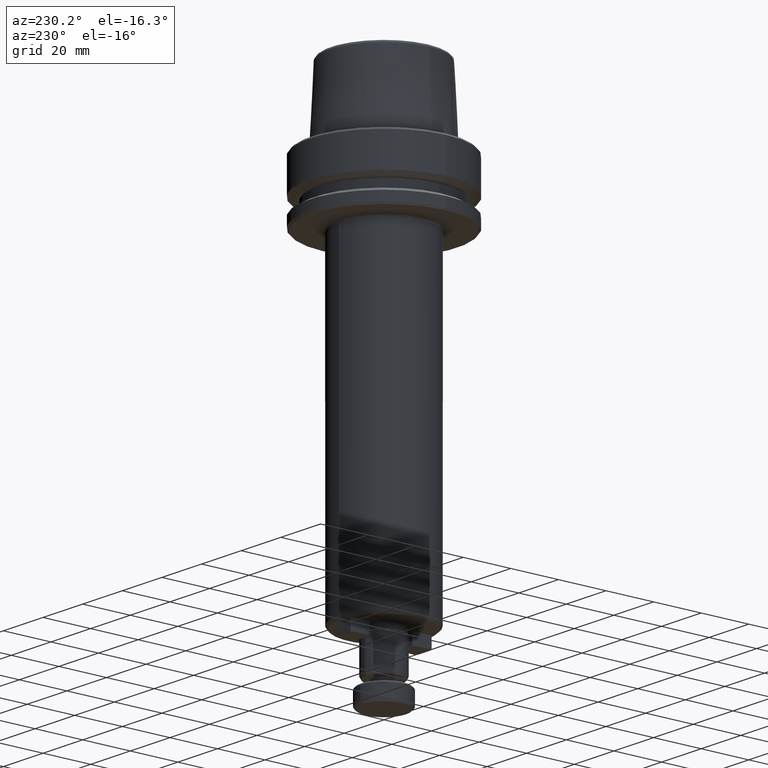
[diagram: clean part render]
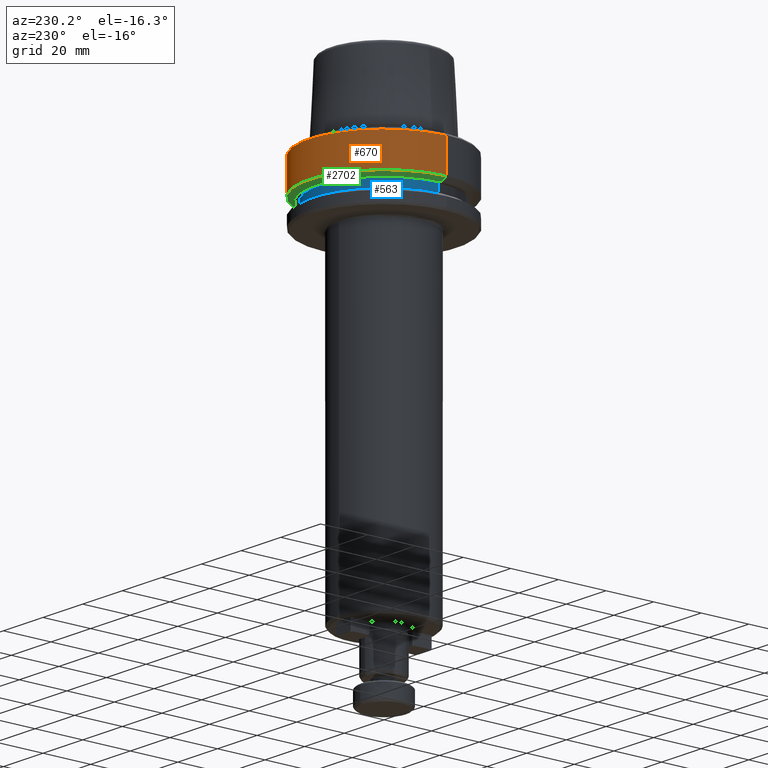
[diagram: same view with three faces highlighted in distinct colors, each labeled with its STEP entity id]
A machine part, auxiliary view with three faces highlighted in distinct colors.
Their STEP definitions:

[orange] entity #670 — the highlighted cylindrical surface (partial cylindrical patch) has radius 31.5 mm, axis along (-0, -0, 1).
#213 = ORIENTED_EDGE ( 'NONE', *, *, #2372, .T. ) ;
#319 = DIRECTION ( 'NONE',  ( -0.0000000000000000000, -0.0000000000000000000, 1.000000000000000000 ) ) ;
#325 = CARTESIAN_POINT ( 'NONE',  ( 31.50000000000000000, 0.0000000000000000000, 78.96908074195309300 ) ) ;
#368 = CARTESIAN_POINT ( 'NONE',  ( -31.50000000000000000, 3.857637417314162700E-015, 78.96908074195309300 ) ) ;
#485 = ORIENTED_EDGE ( 'NONE', *, *, #1772, .T. ) ;
#546 = CYLINDRICAL_SURFACE ( 'NONE', #1973, 31.50000000000000000 ) ;
#612 = EDGE_CURVE ( 'NONE', #660, #1652, #673, .T. ) ;
#617 = CARTESIAN_POINT ( 'NONE',  ( 0.0000000000000000000, 0.0000000000000000000, -14.62250092524070100 ) ) ;
#637 = VERTEX_POINT ( 'NONE', #1061 ) ;
#660 = VERTEX_POINT ( 'NONE', #2223 ) ;
#670 = ADVANCED_FACE ( 'NONE', ( #1701 ), #546, .T. ) ;
#673 = CIRCLE ( 'NONE', #931, 31.50000000000000700 ) ;
#724 = VECTOR ( 'NONE', #319, 1000.000000000000000 ) ;
#770 = CARTESIAN_POINT ( 'NONE',  ( -31.50000000000000700, 3.857637417314163500E-015, -0.9656854249492363700 ) ) ;
#821 = DIRECTION ( 'NONE',  ( 1.000000000000000000, 0.0000000000000000000, 0.0000000000000000000 ) ) ;
#841 = AXIS2_PLACEMENT_3D ( 'NONE', #617, #2143, #821 ) ;
#931 = AXIS2_PLACEMENT_3D ( 'NONE', #2146, #2150, #2151 ) ;
#1061 = CARTESIAN_POINT ( 'NONE',  ( 31.50000000000000000, 0.0000000000000000000, -14.62250092524070100 ) ) ;
#1081 = EDGE_CURVE ( 'NONE', #637, #660, #2445, .T. ) ;
#1116 = ORIENTED_EDGE ( 'NONE', *, *, #612, .F. ) ;
#1232 = ORIENTED_EDGE ( 'NONE', *, *, #1081, .F. ) ;
#1599 = VECTOR ( 'NONE', #1906, 1000.000000000000000 ) ;
#1652 = VERTEX_POINT ( 'NONE', #770 ) ;
#1701 = FACE_OUTER_BOUND ( 'NONE', #2463, .T. ) ;
#1772 = EDGE_CURVE ( 'NONE', #2730, #1652, #2190, .T. ) ;
#1906 = DIRECTION ( 'NONE',  ( -0.0000000000000000000, -0.0000000000000000000, 1.000000000000000000 ) ) ;
#1973 = AXIS2_PLACEMENT_3D ( 'NONE', #2245, #2244, #2262 ) ;
#2143 = DIRECTION ( 'NONE',  ( -0.0000000000000000000, -0.0000000000000000000, 1.000000000000000000 ) ) ;
#2146 = CARTESIAN_POINT ( 'NONE',  ( 0.0000000000000000000, 0.0000000000000000000, -0.9656854249492363700 ) ) ;
#2150 = DIRECTION ( 'NONE',  ( -0.0000000000000000000, -0.0000000000000000000, 1.000000000000000000 ) ) ;
#2151 = DIRECTION ( 'NONE',  ( 1.000000000000000000, 0.0000000000000000000, 0.0000000000000000000 ) ) ;
#2190 = LINE ( 'NONE', #368, #1599 ) ;
#2223 = CARTESIAN_POINT ( 'NONE',  ( 31.50000000000000700, 0.0000000000000000000, -0.9656854249492363700 ) ) ;
#2244 = DIRECTION ( 'NONE',  ( -0.0000000000000000000, -0.0000000000000000000, 1.000000000000000000 ) ) ;
#2245 = CARTESIAN_POINT ( 'NONE',  ( 0.0000000000000000000, 0.0000000000000000000, 78.96908074195309300 ) ) ;
#2262 = DIRECTION ( 'NONE',  ( 1.000000000000000000, 0.0000000000000000000, 0.0000000000000000000 ) ) ;
#2295 = CARTESIAN_POINT ( 'NONE',  ( -31.50000000000000000, 3.857637417314162700E-015, -14.62250092524070100 ) ) ;
#2372 = EDGE_CURVE ( 'NONE', #637, #2730, #2591, .T. ) ;
#2445 = LINE ( 'NONE', #325, #724 ) ;
#2463 = EDGE_LOOP ( 'NONE', ( #213, #485, #1116, #1232 ) ) ;
#2591 = CIRCLE ( 'NONE', #841, 31.50000000000000000 ) ;
#2730 = VERTEX_POINT ( 'NONE', #2295 ) ;

[blue] entity #563 — the highlighted cylindrical surface (partial cylindrical patch) has radius 27.5 mm, axis along (-0, -0, 1).
#80 = CARTESIAN_POINT ( 'NONE',  ( 27.49999999999999600, 0.0000000000000000000, 78.96908074195309300 ) ) ;
#117 = CARTESIAN_POINT ( 'NONE',  ( -27.49999999999999600, 3.367778697655220900E-015, -19.90000000000001600 ) ) ;
#123 = EDGE_LOOP ( 'NONE', ( #540, #1204, #883, #2273 ) ) ;
#146 = EDGE_CURVE ( 'NONE', #2593, #1729, #2282, .T. ) ;
#241 = CARTESIAN_POINT ( 'NONE',  ( 27.49999999999999600, 0.0000000000000000000, -16.10000000000001600 ) ) ;
#514 = AXIS2_PLACEMENT_3D ( 'NONE', #1614, #1522, #1831 ) ;
#540 = ORIENTED_EDGE ( 'NONE', *, *, #2075, .T. ) ;
#549 = CARTESIAN_POINT ( 'NONE',  ( 27.49999999999999600, 0.0000000000000000000, -19.90000000000001600 ) ) ;
#563 = ADVANCED_FACE ( 'NONE', ( #2648 ), #1377, .T. ) ;
#709 = CARTESIAN_POINT ( 'NONE',  ( 0.0000000000000000000, 0.0000000000000000000, -19.90000000000001600 ) ) ;
#831 = AXIS2_PLACEMENT_3D ( 'NONE', #1773, #1718, #1725 ) ;
#883 = ORIENTED_EDGE ( 'NONE', *, *, #146, .F. ) ;
#908 = DIRECTION ( 'NONE',  ( 1.000000000000000000, 0.0000000000000000000, 0.0000000000000000000 ) ) ;
#1204 = ORIENTED_EDGE ( 'NONE', *, *, #2336, .T. ) ;
#1303 = LINE ( 'NONE', #1451, #1909 ) ;
#1377 = CYLINDRICAL_SURFACE ( 'NONE', #514, 27.49999999999999600 ) ;
#1403 = VERTEX_POINT ( 'NONE', #549 ) ;
#1451 = CARTESIAN_POINT ( 'NONE',  ( -27.49999999999999600, 3.367778697655220900E-015, 78.96908074195309300 ) ) ;
#1522 = DIRECTION ( 'NONE',  ( -0.0000000000000000000, -0.0000000000000000000, 1.000000000000000000 ) ) ;
#1614 = CARTESIAN_POINT ( 'NONE',  ( 0.0000000000000000000, 0.0000000000000000000, 78.96908074195309300 ) ) ;
#1642 = DIRECTION ( 'NONE',  ( -0.0000000000000000000, -0.0000000000000000000, 1.000000000000000000 ) ) ;
#1665 = VECTOR ( 'NONE', #1642, 1000.000000000000000 ) ;
#1673 = CARTESIAN_POINT ( 'NONE',  ( -27.49999999999999600, 3.367778697655220900E-015, -16.10000000000001600 ) ) ;
#1718 = DIRECTION ( 'NONE',  ( -0.0000000000000000000, -0.0000000000000000000, 1.000000000000000000 ) ) ;
#1725 = DIRECTION ( 'NONE',  ( 1.000000000000000000, 0.0000000000000000000, 0.0000000000000000000 ) ) ;
#1729 = VERTEX_POINT ( 'NONE', #1673 ) ;
#1735 = VERTEX_POINT ( 'NONE', #117 ) ;
#1773 = CARTESIAN_POINT ( 'NONE',  ( 0.0000000000000000000, 0.0000000000000000000, -16.10000000000001600 ) ) ;
#1831 = DIRECTION ( 'NONE',  ( 1.000000000000000000, 0.0000000000000000000, 0.0000000000000000000 ) ) ;
#1909 = VECTOR ( 'NONE', #2127, 1000.000000000000000 ) ;
#2075 = EDGE_CURVE ( 'NONE', #1403, #1735, #2622, .T. ) ;
#2127 = DIRECTION ( 'NONE',  ( -0.0000000000000000000, -0.0000000000000000000, 1.000000000000000000 ) ) ;
#2157 = AXIS2_PLACEMENT_3D ( 'NONE', #709, #2243, #908 ) ;
#2230 = EDGE_CURVE ( 'NONE', #1403, #2593, #2253, .T. ) ;
#2243 = DIRECTION ( 'NONE',  ( -0.0000000000000000000, -0.0000000000000000000, 1.000000000000000000 ) ) ;
#2253 = LINE ( 'NONE', #80, #1665 ) ;
#2273 = ORIENTED_EDGE ( 'NONE', *, *, #2230, .F. ) ;
#2282 = CIRCLE ( 'NONE', #831, 27.49999999999999600 ) ;
#2336 = EDGE_CURVE ( 'NONE', #1735, #1729, #1303, .T. ) ;
#2593 = VERTEX_POINT ( 'NONE', #241 ) ;
#2622 = CIRCLE ( 'NONE', #2157, 27.49999999999999600 ) ;
#2648 = FACE_OUTER_BOUND ( 'NONE', #123, .T. ) ;

[green] entity #2702 — the highlighted conical surface has half-angle 60 deg.
#110 = DIRECTION ( 'NONE',  ( 1.000000000000000000, 0.0000000000000000000, 0.0000000000000000000 ) ) ;
#112 = VERTEX_POINT ( 'NONE', #1894 ) ;
#138 = AXIS2_PLACEMENT_3D ( 'NONE', #2710, #1437, #110 ) ;
#274 = FACE_OUTER_BOUND ( 'NONE', #2675, .T. ) ;
#292 = DIRECTION ( 'NONE',  ( 1.000000000000000000, 0.0000000000000000000, 0.0000000000000000000 ) ) ;
#617 = CARTESIAN_POINT ( 'NONE',  ( 0.0000000000000000000, 0.0000000000000000000, -14.62250092524070100 ) ) ;
#628 = VERTEX_POINT ( 'NONE', #2156 ) ;
#637 = VERTEX_POINT ( 'NONE', #1061 ) ;
#669 = CONICAL_SURFACE ( 'NONE', #1822, 28.94089653438085100, 1.047197551196598300 ) ;
#821 = DIRECTION ( 'NONE',  ( 1.000000000000000000, 0.0000000000000000000, 0.0000000000000000000 ) ) ;
#835 = ORIENTED_EDGE ( 'NONE', *, *, #2809, .F. ) ;
#841 = AXIS2_PLACEMENT_3D ( 'NONE', #617, #2143, #821 ) ;
#843 = ORIENTED_EDGE ( 'NONE', *, *, #2802, .T. ) ;
#941 = VECTOR ( 'NONE', #1580, 1000.000000000000000 ) ;
#1061 = CARTESIAN_POINT ( 'NONE',  ( 31.50000000000000000, 0.0000000000000000000, -14.62250092524070100 ) ) ;
#1217 = DIRECTION ( 'NONE',  ( 0.8660254037844389300, 0.0000000000000000000, 0.4999999999999995000 ) ) ;
#1267 = EDGE_CURVE ( 'NONE', #112, #2730, #2656, .T. ) ;
#1387 = CARTESIAN_POINT ( 'NONE',  ( 0.0000000000000000000, 0.0000000000000000000, -16.10000000000001600 ) ) ;
#1427 = LINE ( 'NONE', #2515, #2570 ) ;
#1437 = DIRECTION ( 'NONE',  ( -0.0000000000000000000, -0.0000000000000000000, 1.000000000000000000 ) ) ;
#1580 = DIRECTION ( 'NONE',  ( -0.8660254037844389300, 1.060575238724907300E-016, 0.4999999999999995000 ) ) ;
#1593 = CARTESIAN_POINT ( 'NONE',  ( -28.94089653438085100, 3.544237630528423800E-015, -16.10000000000001600 ) ) ;
#1617 = DIRECTION ( 'NONE',  ( -0.0000000000000000000, -0.0000000000000000000, 1.000000000000000000 ) ) ;
#1780 = ORIENTED_EDGE ( 'NONE', *, *, #1267, .T. ) ;
#1822 = AXIS2_PLACEMENT_3D ( 'NONE', #1387, #1617, #292 ) ;
#1894 = CARTESIAN_POINT ( 'NONE',  ( -28.94089653438085100, 3.700937523921292900E-015, -16.10000000000001600 ) ) ;
#2143 = DIRECTION ( 'NONE',  ( -0.0000000000000000000, -0.0000000000000000000, 1.000000000000000000 ) ) ;
#2156 = CARTESIAN_POINT ( 'NONE',  ( 28.94089653438085100, 0.0000000000000000000, -16.10000000000001600 ) ) ;
#2295 = CARTESIAN_POINT ( 'NONE',  ( -31.50000000000000000, 3.857637417314162700E-015, -14.62250092524070100 ) ) ;
#2372 = EDGE_CURVE ( 'NONE', #637, #2730, #2591, .T. ) ;
#2382 = ORIENTED_EDGE ( 'NONE', *, *, #2372, .F. ) ;
#2515 = CARTESIAN_POINT ( 'NONE',  ( 28.94089653438085100, 0.0000000000000000000, -16.10000000000001600 ) ) ;
#2570 = VECTOR ( 'NONE', #1217, 1000.000000000000000 ) ;
#2591 = CIRCLE ( 'NONE', #841, 31.50000000000000000 ) ;
#2632 = CIRCLE ( 'NONE', #138, 28.94089653438085100 ) ;
#2656 = LINE ( 'NONE', #1593, #941 ) ;
#2675 = EDGE_LOOP ( 'NONE', ( #843, #1780, #2382, #835 ) ) ;
#2702 = ADVANCED_FACE ( 'NONE', ( #274 ), #669, .T. ) ;
#2710 = CARTESIAN_POINT ( 'NONE',  ( 0.0000000000000000000, 0.0000000000000000000, -16.10000000000001600 ) ) ;
#2730 = VERTEX_POINT ( 'NONE', #2295 ) ;
#2802 = EDGE_CURVE ( 'NONE', #628, #112, #2632, .T. ) ;
#2809 = EDGE_CURVE ( 'NONE', #628, #637, #1427, .T. ) ;